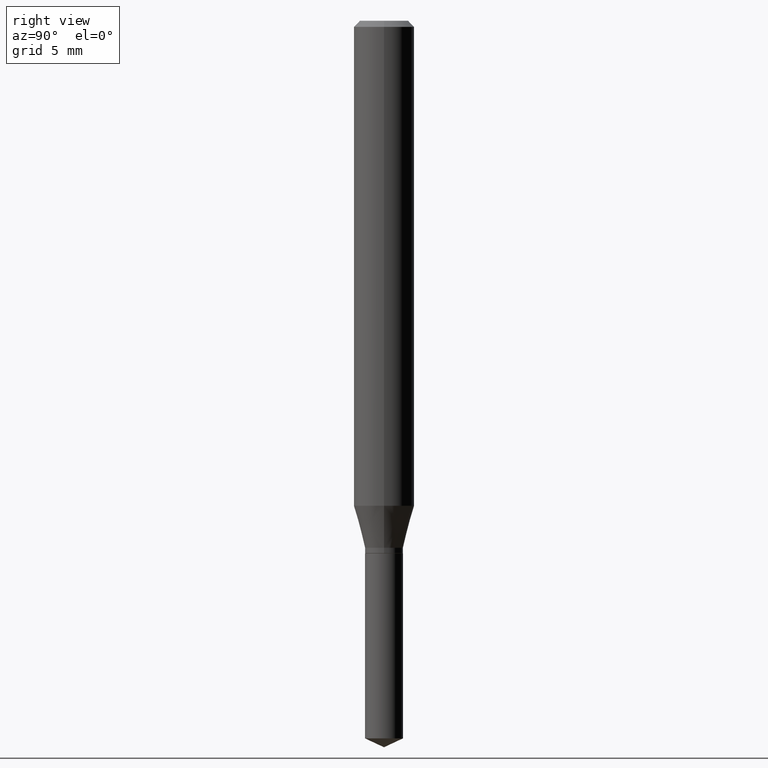
[diagram: clean part render]
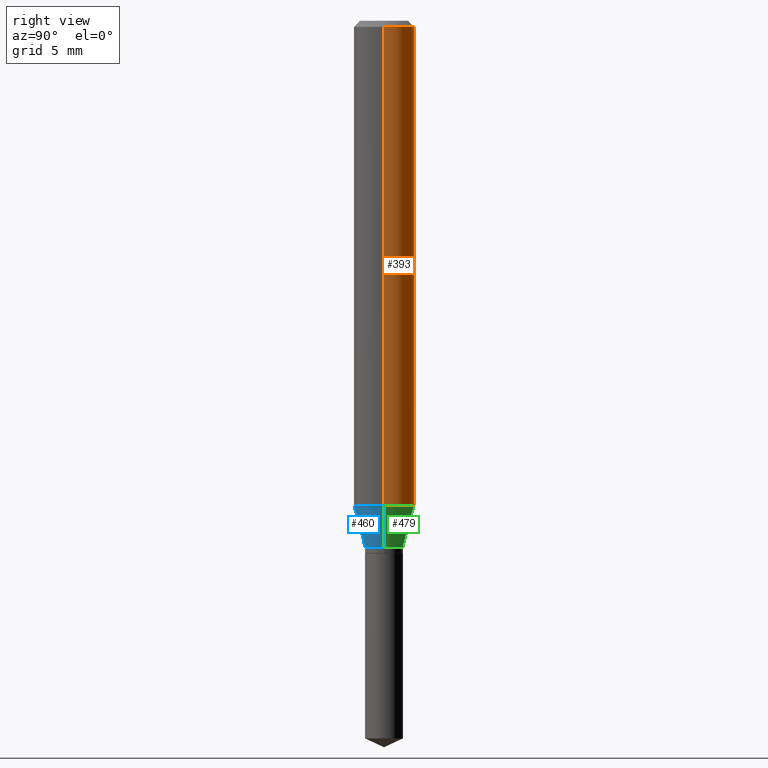
[diagram: same view with three faces highlighted in distinct colors, each labeled with its STEP entity id]
A machine part, right view with three faces highlighted in distinct colors.
Their STEP definitions:

[orange] entity #393 — the highlighted cylindrical surface (edge-blend (fillet) strip) has radius 1.5875 mm, axis along (-0, 0, 1).
#14 = DIRECTION ( 'NONE',  ( 1.000000000000000000, -6.982962677686264344E-15, 0.000000000000000000 ) ) ;
#28 = AXIS2_PLACEMENT_3D ( 'NONE', #177, #210, #276 ) ;
#35 = EDGE_CURVE ( 'NONE', #406, #290, #165, .T. ) ;
#42 = CARTESIAN_POINT ( 'NONE',  ( 3.056836007731440539E-31, -4.364351673553960451E-17, -0.01250000000000008049 ) ) ;
#46 = DIRECTION ( 'NONE',  ( -2.445468806185136597E-29, 3.491481338843145583E-15, 1.000000000000000000 ) ) ;
#75 = AXIS2_PLACEMENT_3D ( 'NONE', #306, #46, #14 ) ;
#77 = VERTEX_POINT ( 'NONE', #260 ) ;
#146 = VECTOR ( 'NONE', #204, 39.37007874015748143 ) ;
#165 = CIRCLE ( 'NONE', #431, 0.06250000000000000000 ) ;
#168 = LINE ( 'NONE', #462, #197 ) ;
#177 = CARTESIAN_POINT ( 'NONE',  ( 0.000000000000000000, 0.000000000000000000, 0.000000000000000000 ) ) ;
#197 = VECTOR ( 'NONE', #345, 39.37007874015748143 ) ;
#204 = DIRECTION ( 'NONE',  ( -2.445468806185136877E-29, 3.491481338843145188E-15, 1.000000000000000000 ) ) ;
#207 = CARTESIAN_POINT ( 'NONE',  ( 0.06250000000000000000, -4.800786840909312308E-16, -0.01250000000000008049 ) ) ;
#210 = DIRECTION ( 'NONE',  ( -2.445468806185136597E-29, 3.491481338843145583E-15, 1.000000000000000000 ) ) ;
#212 = CYLINDRICAL_SURFACE ( 'NONE', #28, 0.06250000000000005551 ) ;
#217 = EDGE_CURVE ( 'NONE', #77, #406, #470, .T. ) ;
#219 = ORIENTED_EDGE ( 'NONE', *, *, #222, .T. ) ;
#222 = EDGE_CURVE ( 'NONE', #392, #290, #168, .T. ) ;
#237 = CARTESIAN_POINT ( 'NONE',  ( -0.06250000000000000000, -1.325969310635706967E-15, -0.01250000000000008049 ) ) ;
#253 = EDGE_CURVE ( 'NONE', #77, #392, #483, .T. ) ;
#254 = ORIENTED_EDGE ( 'NONE', *, *, #217, .F. ) ;
#260 = CARTESIAN_POINT ( 'NONE',  ( 0.06250000000000012490, -3.932908691591394824E-15, -1.001429818724023590 ) ) ;
#276 = DIRECTION ( 'NONE',  ( 1.000000000000000000, -6.982962677686267499E-15, 4.876176775795936353E-29 ) ) ;
#284 = FACE_OUTER_BOUND ( 'NONE', #453, .T. ) ;
#290 = VERTEX_POINT ( 'NONE', #237 ) ;
#306 = CARTESIAN_POINT ( 'NONE',  ( 2.448965383273235722E-29, -3.496473524236002365E-15, -1.001429818724023590 ) ) ;
#310 = ORIENTED_EDGE ( 'NONE', *, *, #35, .F. ) ;
#345 = DIRECTION ( 'NONE',  ( -2.445468806185136877E-29, 3.491481338843145188E-15, 1.000000000000000000 ) ) ;
#381 = CARTESIAN_POINT ( 'NONE',  ( 0.06250000000000005551, -4.364351673553921131E-16, 3.047610484872463023E-30 ) ) ;
#392 = VERTEX_POINT ( 'NONE', #401 ) ;
#393 = ADVANCED_FACE ( 'NONE', ( #284 ), #212, .T. ) ;
#401 = CARTESIAN_POINT ( 'NONE',  ( -0.06250000000000012490, -3.052384314385938566E-15, -1.001429818724023590 ) ) ;
#406 = VERTEX_POINT ( 'NONE', #207 ) ;
#410 = DIRECTION ( 'NONE',  ( -2.445468806185136597E-29, 3.491481338843145583E-15, 1.000000000000000000 ) ) ;
#431 = AXIS2_PLACEMENT_3D ( 'NONE', #42, #410, #450 ) ;
#450 = DIRECTION ( 'NONE',  ( 1.000000000000000000, -6.982962677686266711E-15, 0.000000000000000000 ) ) ;
#453 = EDGE_LOOP ( 'NONE', ( #482, #219, #310, #254 ) ) ;
#462 = CARTESIAN_POINT ( 'NONE',  ( -0.06250000000000005551, 4.440892098500630106E-16, -3.074334431409318916E-30 ) ) ;
#470 = LINE ( 'NONE', #381, #146 ) ;
#482 = ORIENTED_EDGE ( 'NONE', *, *, #253, .T. ) ;
#483 = CIRCLE ( 'NONE', #75, 0.06250000000000012490 ) ;

[blue] entity #460 — the highlighted conical surface has half-angle 15 deg.
#6 = CARTESIAN_POINT ( 'NONE',  ( 2.448965383273235722E-29, -3.496473524236002365E-15, -1.001429818724023590 ) ) ;
#13 = AXIS2_PLACEMENT_3D ( 'NONE', #6, #152, #313 ) ;
#26 = ORIENTED_EDGE ( 'NONE', *, *, #463, .T. ) ;
#27 = CARTESIAN_POINT ( 'NONE',  ( 0.03925000000000000017, -4.073511278028297355E-15, -1.088200000000000056 ) ) ;
#64 = CARTESIAN_POINT ( 'NONE',  ( -0.03925000000000000017, -3.540268838707735840E-15, -1.088200000000000056 ) ) ;
#77 = VERTEX_POINT ( 'NONE', #260 ) ;
#81 = CONICAL_SURFACE ( 'NONE', #291, 0.03925000000000000017, 0.2617993877991499629 ) ;
#87 = CARTESIAN_POINT ( 'NONE',  ( -0.03925000000000000017, -3.520541969143272060E-15, -1.088200000000000056 ) ) ;
#97 = CARTESIAN_POINT ( 'NONE',  ( 0.03925000000000000017, -4.073511278028297355E-15, -1.088200000000000056 ) ) ;
#130 = EDGE_CURVE ( 'NONE', #392, #77, #215, .T. ) ;
#132 = DIRECTION ( 'NONE',  ( 1.000000000000000000, -6.982962677686264344E-15, 0.000000000000000000 ) ) ;
#139 = DIRECTION ( 'NONE',  ( 0.2588190451025212391, 1.565188264969622362E-15, 0.9659258262890679791 ) ) ;
#152 = DIRECTION ( 'NONE',  ( -2.445468806185136597E-29, 3.491481338843145583E-15, 1.000000000000000000 ) ) ;
#171 = VECTOR ( 'NONE', #232, 39.37007874015748854 ) ;
#175 = FACE_OUTER_BOUND ( 'NONE', #285, .T. ) ;
#179 = CARTESIAN_POINT ( 'NONE',  ( 2.661159154890666307E-29, -3.799429992929111828E-15, -1.088200000000000056 ) ) ;
#191 = ORIENTED_EDGE ( 'NONE', *, *, #209, .F. ) ;
#209 = EDGE_CURVE ( 'NONE', #464, #392, #429, .T. ) ;
#215 = CIRCLE ( 'NONE', #13, 0.06250000000000012490 ) ;
#232 = DIRECTION ( 'NONE',  ( -0.2588190451025212391, 5.211531920934549464E-15, 0.9659258262890679791 ) ) ;
#260 = CARTESIAN_POINT ( 'NONE',  ( 0.06250000000000012490, -3.932908691591394824E-15, -1.001429818724023590 ) ) ;
#283 = AXIS2_PLACEMENT_3D ( 'NONE', #360, #287, #132 ) ;
#285 = EDGE_LOOP ( 'NONE', ( #191, #26, #442, #356 ) ) ;
#287 = DIRECTION ( 'NONE',  ( -2.445468806185136597E-29, 3.491481338843145583E-15, 1.000000000000000000 ) ) ;
#291 = AXIS2_PLACEMENT_3D ( 'NONE', #179, #325, #319 ) ;
#298 = CIRCLE ( 'NONE', #283, 0.03925000000000000017 ) ;
#313 = DIRECTION ( 'NONE',  ( 1.000000000000000000, -6.982962677686264344E-15, 0.000000000000000000 ) ) ;
#319 = DIRECTION ( 'NONE',  ( 1.000000000000000000, -6.982962677686264344E-15, 0.000000000000000000 ) ) ;
#325 = DIRECTION ( 'NONE',  ( -2.445468806185136597E-29, 3.491481338843145583E-15, 1.000000000000000000 ) ) ;
#330 = EDGE_CURVE ( 'NONE', #364, #77, #403, .T. ) ;
#348 = VECTOR ( 'NONE', #139, 39.37007874015748854 ) ;
#356 = ORIENTED_EDGE ( 'NONE', *, *, #130, .F. ) ;
#360 = CARTESIAN_POINT ( 'NONE',  ( 2.661159154890666307E-29, -3.799429992929111828E-15, -1.088200000000000056 ) ) ;
#364 = VERTEX_POINT ( 'NONE', #97 ) ;
#392 = VERTEX_POINT ( 'NONE', #401 ) ;
#401 = CARTESIAN_POINT ( 'NONE',  ( -0.06250000000000012490, -3.052384314385938566E-15, -1.001429818724023590 ) ) ;
#403 = LINE ( 'NONE', #27, #348 ) ;
#429 = LINE ( 'NONE', #87, #171 ) ;
#442 = ORIENTED_EDGE ( 'NONE', *, *, #330, .T. ) ;
#460 = ADVANCED_FACE ( 'NONE', ( #175 ), #81, .T. ) ;
#463 = EDGE_CURVE ( 'NONE', #464, #364, #298, .T. ) ;
#464 = VERTEX_POINT ( 'NONE', #64 ) ;

[green] entity #479 — the highlighted conical surface has half-angle 15 deg.
#14 = DIRECTION ( 'NONE',  ( 1.000000000000000000, -6.982962677686264344E-15, 0.000000000000000000 ) ) ;
#27 = CARTESIAN_POINT ( 'NONE',  ( 0.03925000000000000017, -4.073511278028297355E-15, -1.088200000000000056 ) ) ;
#46 = DIRECTION ( 'NONE',  ( -2.445468806185136597E-29, 3.491481338843145583E-15, 1.000000000000000000 ) ) ;
#55 = CIRCLE ( 'NONE', #118, 0.03925000000000000017 ) ;
#56 = AXIS2_PLACEMENT_3D ( 'NONE', #443, #100, #252 ) ;
#62 = FACE_OUTER_BOUND ( 'NONE', #362, .T. ) ;
#64 = CARTESIAN_POINT ( 'NONE',  ( -0.03925000000000000017, -3.540268838707735840E-15, -1.088200000000000056 ) ) ;
#65 = CONICAL_SURFACE ( 'NONE', #56, 0.03925000000000000017, 0.2617993877991499629 ) ;
#75 = AXIS2_PLACEMENT_3D ( 'NONE', #306, #46, #14 ) ;
#77 = VERTEX_POINT ( 'NONE', #260 ) ;
#85 = CARTESIAN_POINT ( 'NONE',  ( 2.661159154890666307E-29, -3.799429992929111828E-15, -1.088200000000000056 ) ) ;
#87 = CARTESIAN_POINT ( 'NONE',  ( -0.03925000000000000017, -3.520541969143272060E-15, -1.088200000000000056 ) ) ;
#97 = CARTESIAN_POINT ( 'NONE',  ( 0.03925000000000000017, -4.073511278028297355E-15, -1.088200000000000056 ) ) ;
#100 = DIRECTION ( 'NONE',  ( -2.445468806185136597E-29, 3.491481338843145583E-15, 1.000000000000000000 ) ) ;
#118 = AXIS2_PLACEMENT_3D ( 'NONE', #85, #268, #352 ) ;
#139 = DIRECTION ( 'NONE',  ( 0.2588190451025212391, 1.565188264969622362E-15, 0.9659258262890679791 ) ) ;
#171 = VECTOR ( 'NONE', #232, 39.37007874015748854 ) ;
#209 = EDGE_CURVE ( 'NONE', #464, #392, #429, .T. ) ;
#211 = ORIENTED_EDGE ( 'NONE', *, *, #253, .F. ) ;
#220 = EDGE_CURVE ( 'NONE', #364, #464, #55, .T. ) ;
#232 = DIRECTION ( 'NONE',  ( -0.2588190451025212391, 5.211531920934549464E-15, 0.9659258262890679791 ) ) ;
#252 = DIRECTION ( 'NONE',  ( 1.000000000000000000, -6.982962677686264344E-15, 0.000000000000000000 ) ) ;
#253 = EDGE_CURVE ( 'NONE', #77, #392, #483, .T. ) ;
#260 = CARTESIAN_POINT ( 'NONE',  ( 0.06250000000000012490, -3.932908691591394824E-15, -1.001429818724023590 ) ) ;
#268 = DIRECTION ( 'NONE',  ( -2.445468806185136597E-29, 3.491481338843145583E-15, 1.000000000000000000 ) ) ;
#274 = ORIENTED_EDGE ( 'NONE', *, *, #330, .F. ) ;
#304 = ORIENTED_EDGE ( 'NONE', *, *, #220, .T. ) ;
#306 = CARTESIAN_POINT ( 'NONE',  ( 2.448965383273235722E-29, -3.496473524236002365E-15, -1.001429818724023590 ) ) ;
#322 = ORIENTED_EDGE ( 'NONE', *, *, #209, .T. ) ;
#330 = EDGE_CURVE ( 'NONE', #364, #77, #403, .T. ) ;
#348 = VECTOR ( 'NONE', #139, 39.37007874015748854 ) ;
#352 = DIRECTION ( 'NONE',  ( 1.000000000000000000, -6.982962677686264344E-15, 0.000000000000000000 ) ) ;
#362 = EDGE_LOOP ( 'NONE', ( #304, #322, #211, #274 ) ) ;
#364 = VERTEX_POINT ( 'NONE', #97 ) ;
#392 = VERTEX_POINT ( 'NONE', #401 ) ;
#401 = CARTESIAN_POINT ( 'NONE',  ( -0.06250000000000012490, -3.052384314385938566E-15, -1.001429818724023590 ) ) ;
#403 = LINE ( 'NONE', #27, #348 ) ;
#429 = LINE ( 'NONE', #87, #171 ) ;
#443 = CARTESIAN_POINT ( 'NONE',  ( 2.661159154890666307E-29, -3.799429992929111828E-15, -1.088200000000000056 ) ) ;
#464 = VERTEX_POINT ( 'NONE', #64 ) ;
#479 = ADVANCED_FACE ( 'NONE', ( #62 ), #65, .T. ) ;
#483 = CIRCLE ( 'NONE', #75, 0.06250000000000012490 ) ;